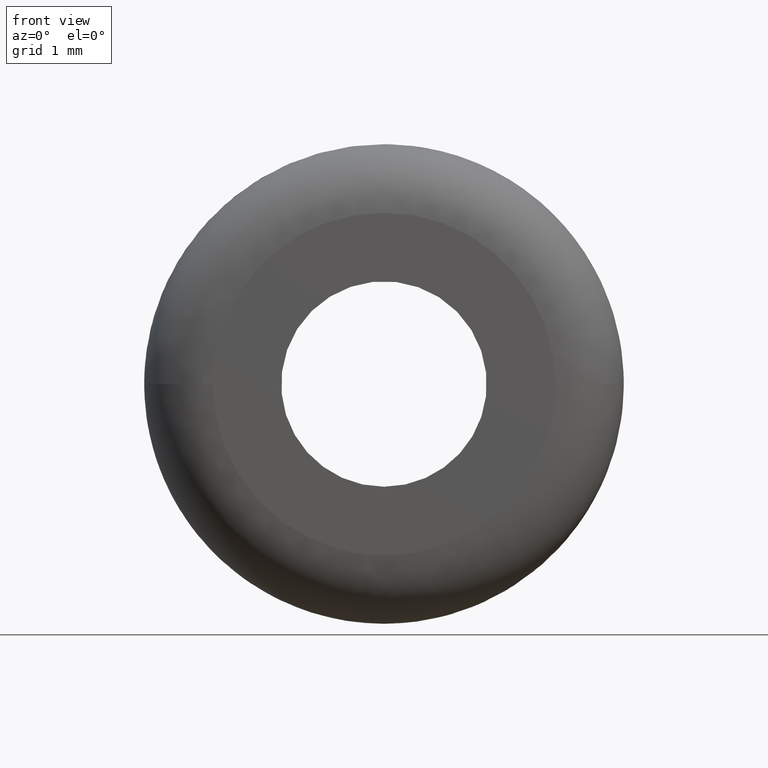
[diagram: clean part render]
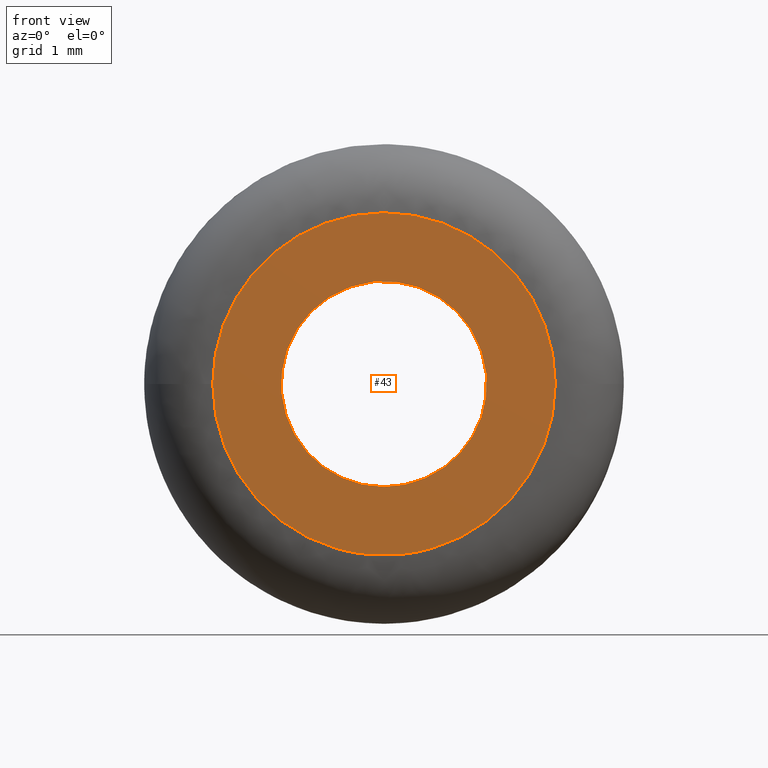
[diagram: same view with one face highlighted and labeled with its STEP entity id]
A machine part, front view. The second image highlights one B-rep face of the part: STEP entity #43.
In plain terms, the highlighted planar face has unit normal (0, 1, 0).
Its self-contained STEP definition (entity closure, byte-faithful):
#43=ADVANCED_FACE('',(#90,#91),#89,.F.);
#89=PLANE('',#241);
#90=FACE_OUTER_BOUND('',#242,.T.);
#91=FACE_BOUND('',#243,.T.);
#238=CARTESIAN_POINT('',(-5.19615242273E+000,-3.67381900000E-016,-5.75000000002E+000));
#239=DIRECTION('',(0.00000000000E+000,1.00000000000E+000,0.00000000000E+000));
#240=DIRECTION('',(0.00000000000E+000,0.00000000000E+000,1.00000000000E+000));
#241=AXIS2_PLACEMENT_3D('',#238,#239,#240);
#242=EDGE_LOOP('',(#405,#406,#407));
#243=EDGE_LOOP('',(#408,#409,#410));
#405=ORIENTED_EDGE('',*,*,#503,.T.);
#406=ORIENTED_EDGE('',*,*,#504,.T.);
#407=ORIENTED_EDGE('',*,*,#505,.T.);
#408=ORIENTED_EDGE('',*,*,#506,.F.);
#409=ORIENTED_EDGE('',*,*,#507,.F.);
#410=ORIENTED_EDGE('',*,*,#508,.F.);
#503=EDGE_CURVE('',#654,#655,#656,.T.);
#504=EDGE_CURVE('',#655,#662,#663,.T.);
#505=EDGE_CURVE('',#662,#654,#669,.T.);
#506=EDGE_CURVE('',#675,#676,#677,.T.);
#507=EDGE_CURVE('',#683,#675,#684,.T.);
#508=EDGE_CURVE('',#676,#683,#690,.T.);
#654=VERTEX_POINT('',#951);
#655=VERTEX_POINT('',#952);
#656=CIRCLE('',#956,2.50000000001E+000);
#662=VERTEX_POINT('',#957);
#663=CIRCLE('',#961,2.50000000001E+000);
#669=CIRCLE('',#965,2.50000000001E+000);
#675=VERTEX_POINT('',#966);
#676=VERTEX_POINT('',#967);
#677=CIRCLE('',#971,1.50000000000E+000);
#683=VERTEX_POINT('',#972);
#684=CIRCLE('',#976,1.50000000000E+000);
#690=CIRCLE('',#980,1.50000000000E+000);
#951=CARTESIAN_POINT('',(-3.59982199386E-016,4.19516551547E-016,2.50000000003E+000));
#952=CARTESIAN_POINT('',(-2.50000000002E+000,-1.98554242287E-017,3.06612246436E-014));
#953=CARTESIAN_POINT('',(-2.52553533642E-012,-1.98554242263E-017,1.33317801243E-011));
#954=DIRECTION('',(-4.48415508584E-044,-1.00000000000E+000,1.75748790309E-016));
#955=DIRECTION('',(1.00950359184E-012,1.75748790309E-016,1.00000000000E+000));
#956=AXIS2_PLACEMENT_3D('',#953,#954,#955);
#957=CARTESIAN_POINT('',(2.49999998655E+000,-1.99010258141E-017,-2.59470266449E-004));
#958=CARTESIAN_POINT('',(-2.52553533642E-012,-1.98554242263E-017,1.33317801243E-011));
#959=DIRECTION('',(-4.48415508584E-044,-1.00000000000E+000,1.75748790309E-016));
#960=DIRECTION('',(1.00950359184E-012,1.75748790309E-016,1.00000000000E+000));
#961=AXIS2_PLACEMENT_3D('',#958,#959,#960);
#962=CARTESIAN_POINT('',(-2.52553533642E-012,-1.98554242263E-017,1.33317801243E-011));
#963=DIRECTION('',(-4.48415508584E-044,-1.00000000000E+000,1.75748790309E-016));
#964=DIRECTION('',(1.00950359184E-012,1.75748790309E-016,1.00000000000E+000));
#965=AXIS2_PLACEMENT_3D('',#962,#963,#964);
#966=CARTESIAN_POINT('',(-1.48951439076E+000,-4.25882278340E-016,1.77050500459E-001));
#967=CARTESIAN_POINT('',(0.00000000000E+000,-1.64455904023E-015,-1.50000000000E+000));
#968=CARTESIAN_POINT('',(1.52544643583E-013,-3.88303772140E-016,3.34177130412E-013));
#969=DIRECTION('',(1.24778198384E-016,-1.00000000000E+000,8.37503512063E-016));
#970=DIRECTION('',(-1.01335606573E-013,-8.37503512063E-016,-1.00000000000E+000));
#971=AXIS2_PLACEMENT_3D('',#968,#969,#970);
#972=CARTESIAN_POINT('',(1.48948369674E+000,-3.50945202041E-016,-1.77308536578E-001));
#973=CARTESIAN_POINT('',(1.52544643583E-013,-3.88303772140E-016,3.34177130412E-013));
#974=DIRECTION('',(1.24778198384E-016,-1.00000000000E+000,8.37503512063E-016));
#975=DIRECTION('',(-1.01335606573E-013,-8.37503512063E-016,-1.00000000000E+000));
#976=AXIS2_PLACEMENT_3D('',#973,#974,#975);
#977=CARTESIAN_POINT('',(1.52544643583E-013,-3.88303772140E-016,3.34177130412E-013));
#978=DIRECTION('',(1.24778198384E-016,-1.00000000000E+000,8.37503512063E-016));
#979=DIRECTION('',(-1.01335606573E-013,-8.37503512063E-016,-1.00000000000E+000));
#980=AXIS2_PLACEMENT_3D('',#977,#978,#979);